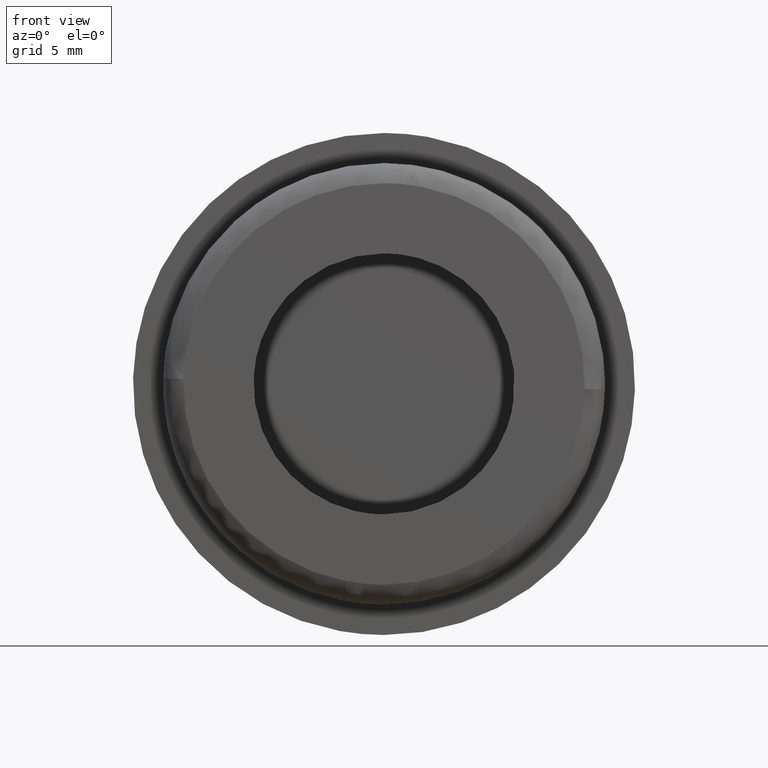
[diagram: clean part render]
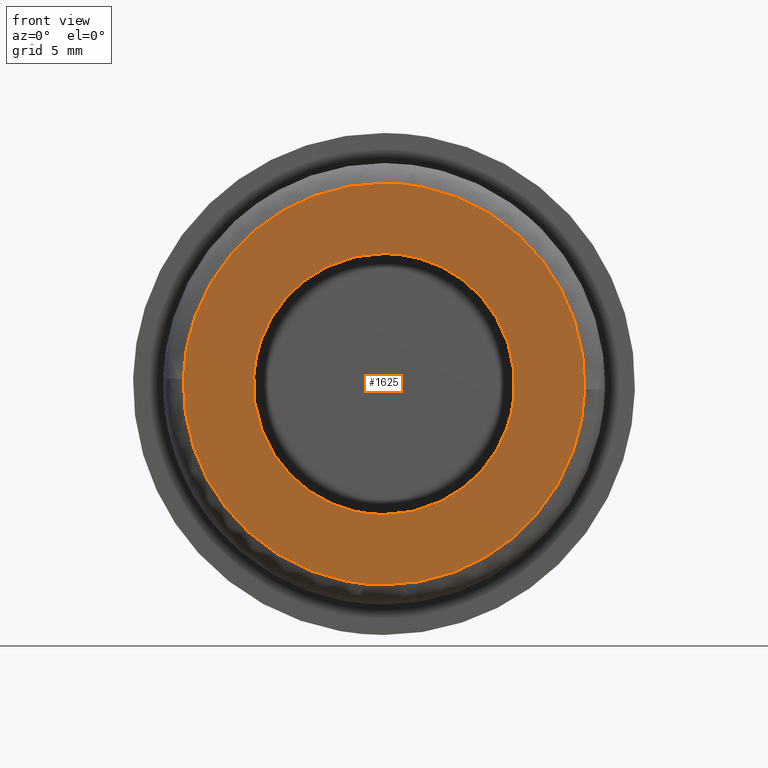
[diagram: same view with one face highlighted and labeled with its STEP entity id]
A machine part, front view. The second image highlights one B-rep face of the part: STEP entity #1625.
In plain terms, the highlighted face is a freeform B-spline surface patch.
Its self-contained STEP definition (entity closure, byte-faithful):
#703=CARTESIAN_POINT('',(6.454560631012747,-3.556444E-016,-0.767214436574179));
#704=VERTEX_POINT('',#703);
#710=CARTESIAN_POINT('',(0.0,-1.193992E-015,6.500000000000002));
#711=VERTEX_POINT('',#710);
#712=CARTESIAN_POINT('',(6.454560631012747,-3.556444E-016,-0.767214436574179));
#713=CARTESIAN_POINT('',(6.499998000000000,-1.193992E-015,-0.384951702039824));
#714=CARTESIAN_POINT('',(6.499998000000000,-1.193992E-015,0.000002000000002));
#715=CARTESIAN_POINT('',(6.499998000000001,-1.193992E-015,6.500000000000003));
#716=CARTESIAN_POINT('',(0.0,-1.193992E-015,6.500000000000002));
#724=(BOUNDED_CURVE()B_SPLINE_CURVE(2,(#712,#713,#714,#715,#716),.UNSPECIFIED.,.F.,.U.)B_SPLINE_CURVE_WITH_KNOTS((3,2,3),(0.229562626758146,0.250000000000000,0.500000000000000),.UNSPECIFIED.)CURVE()GEOMETRIC_REPRESENTATION_ITEM()RATIONAL_B_SPLINE_CURVE((0.956027054549681,0.976056127868406,1.0,0.707106781186548,1.0))REPRESENTATION_ITEM(''));
#725=EDGE_CURVE('',#704,#711,#724,.T.);
#727=CARTESIAN_POINT('',(-6.487874325377931,-1.207618E-015,0.396815228233624));
#728=VERTEX_POINT('',#727);
#729=CARTESIAN_POINT('',(0.0,-1.193992E-015,6.500000000000002));
#730=CARTESIAN_POINT('',(-6.114589589834370,-1.193992E-015,6.500000000000004));
#731=CARTESIAN_POINT('',(-6.487874325377931,-1.207618E-015,0.396815228233624));
#739=(BOUNDED_CURVE()B_SPLINE_CURVE(2,(#729,#730,#731),.UNSPECIFIED.,.F.,.U.)B_SPLINE_CURVE_WITH_KNOTS((3,3),(0.500000000000000,0.739333019598558),.UNSPECIFIED.)CURVE()GEOMETRIC_REPRESENTATION_ITEM()RATIONAL_B_SPLINE_CURVE((1.0,0.719603926085741,0.976072164599322))REPRESENTATION_ITEM(''));
#740=EDGE_CURVE('',#711,#728,#739,.T.);
#814=CARTESIAN_POINT('',(0.0,-1.193992E-015,-6.499995999999999));
#815=VERTEX_POINT('',#814);
#816=CARTESIAN_POINT('',(-6.487874325377931,-1.207618E-015,0.396815228233624));
#817=CARTESIAN_POINT('',(-6.499997999999999,-1.193992E-015,0.198593818988883));
#818=CARTESIAN_POINT('',(-6.499998000000000,-1.193992E-015,0.000002000000002));
#819=CARTESIAN_POINT('',(-6.499998000000001,-1.193992E-015,-6.499995999999997));
#820=CARTESIAN_POINT('',(0.0,-1.193992E-015,-6.499995999999999));
#828=(BOUNDED_CURVE()B_SPLINE_CURVE(2,(#816,#817,#818,#819,#820),.UNSPECIFIED.,.F.,.U.)B_SPLINE_CURVE_WITH_KNOTS((3,2,3),(0.739333019598558,0.750000000000000,1.0),.UNSPECIFIED.)CURVE()GEOMETRIC_REPRESENTATION_ITEM()RATIONAL_B_SPLINE_CURVE((0.976072164599322,0.987502855100806,1.0,0.707106781186548,1.0))REPRESENTATION_ITEM(''));
#829=EDGE_CURVE('',#728,#815,#828,.T.);
#831=CARTESIAN_POINT('',(0.0,-1.193992E-015,-6.499995999999999));
#832=CARTESIAN_POINT('',(5.773137913934289,-1.193992E-015,-6.499995999999999));
#833=CARTESIAN_POINT('',(6.454560631012747,-3.556444E-016,-0.767214436574179));
#841=(BOUNDED_CURVE()B_SPLINE_CURVE(2,(#831,#832,#833),.UNSPECIFIED.,.F.,.U.)B_SPLINE_CURVE_WITH_KNOTS((3,3),(0.0,0.229562626758146),.UNSPECIFIED.)CURVE()GEOMETRIC_REPRESENTATION_ITEM()RATIONAL_B_SPLINE_CURVE((1.0,0.731050653318142,0.956027054549681))REPRESENTATION_ITEM(''));
#842=EDGE_CURVE('',#815,#704,#841,.T.);
#1421=CARTESIAN_POINT('',(-9.996839894024996,1.229141E-014,0.251302904220832));
#1422=VERTEX_POINT('',#1421);
#1423=CARTESIAN_POINT('',(0.0,1.221245E-014,-9.999995999999998));
#1424=VERTEX_POINT('',#1423);
#1425=CARTESIAN_POINT('',(-9.996839894024996,1.229141E-014,0.251302904220832));
#1426=CARTESIAN_POINT('',(-9.999998000000000,1.221245E-014,0.125672296133287));
#1427=CARTESIAN_POINT('',(-9.999998000000000,1.221245E-014,0.000002000000002));
#1428=CARTESIAN_POINT('',(-9.999998000000000,1.221245E-014,-9.999995999999998));
#1429=CARTESIAN_POINT('',(0.0,1.221245E-014,-9.999995999999998));
#1437=(BOUNDED_CURVE()B_SPLINE_CURVE(2,(#1425,#1426,#1427,#1428,#1429),.UNSPECIFIED.,.F.,.U.)B_SPLINE_CURVE_WITH_KNOTS((3,2,3),(0.745579891768633,0.750000000000000,1.0),.UNSPECIFIED.)CURVE()GEOMETRIC_REPRESENTATION_ITEM()RATIONAL_B_SPLINE_CURVE((0.989826157678922,0.994821521090445,1.0,0.707106781186548,1.0))REPRESENTATION_ITEM(''));
#1438=EDGE_CURVE('',#1422,#1424,#1437,.T.);
#1456=CARTESIAN_POINT('',(9.996839894024994,1.227580E-014,-0.251298904220826));
#1457=VERTEX_POINT('',#1456);
#1471=CARTESIAN_POINT('',(0.0,1.221245E-014,-9.999995999999998));
#1472=CARTESIAN_POINT('',(9.751776811385291,1.221245E-014,-9.999995999999998));
#1473=CARTESIAN_POINT('',(9.996839894024994,1.227580E-014,-0.251298904220826));
#1481=(BOUNDED_CURVE()B_SPLINE_CURVE(2,(#1471,#1472,#1473),.UNSPECIFIED.,.F.,.U.)B_SPLINE_CURVE_WITH_KNOTS((3,3),(0.0,0.245579891768634),.UNSPECIFIED.)CURVE()GEOMETRIC_REPRESENTATION_ITEM()RATIONAL_B_SPLINE_CURVE((1.0,0.712285260096103,0.989826157678923))REPRESENTATION_ITEM(''));
#1482=EDGE_CURVE('',#1424,#1457,#1481,.T.);
#1510=CARTESIAN_POINT('',(0.0,1.221245E-014,10.0));
#1511=VERTEX_POINT('',#1510);
#1512=CARTESIAN_POINT('',(0.0,1.221245E-014,10.0));
#1513=CARTESIAN_POINT('',(-9.751776811385232,1.221245E-014,10.000000000000002));
#1514=CARTESIAN_POINT('',(-9.996839894024996,1.229141E-014,0.251302904220832));
#1522=(BOUNDED_CURVE()B_SPLINE_CURVE(2,(#1512,#1513,#1514),.UNSPECIFIED.,.F.,.U.)B_SPLINE_CURVE_WITH_KNOTS((3,3),(0.500000000000000,0.745579891768632),.UNSPECIFIED.)CURVE()GEOMETRIC_REPRESENTATION_ITEM()RATIONAL_B_SPLINE_CURVE((1.0,0.712285260096104,0.989826157678920))REPRESENTATION_ITEM(''));
#1523=EDGE_CURVE('',#1511,#1422,#1522,.T.);
#1525=CARTESIAN_POINT('',(9.996839894024994,1.227580E-014,-0.251298904220826));
#1526=CARTESIAN_POINT('',(9.999998000000000,1.221245E-014,-0.125668296133283));
#1527=CARTESIAN_POINT('',(9.999998000000000,1.221245E-014,0.000002000000002));
#1528=CARTESIAN_POINT('',(9.999998000000000,1.221245E-014,10.000000000000002));
#1529=CARTESIAN_POINT('',(0.0,1.221245E-014,10.0));
#1537=(BOUNDED_CURVE()B_SPLINE_CURVE(2,(#1525,#1526,#1527,#1528,#1529),.UNSPECIFIED.,.F.,.U.)B_SPLINE_CURVE_WITH_KNOTS((3,2,3),(0.245579891768634,0.250000000000000,0.500000000000000),.UNSPECIFIED.)CURVE()GEOMETRIC_REPRESENTATION_ITEM()RATIONAL_B_SPLINE_CURVE((0.989826157678923,0.994821521090445,1.0,0.707106781186548,1.0))REPRESENTATION_ITEM(''));
#1538=EDGE_CURVE('',#1457,#1511,#1537,.T.);
#1608=CARTESIAN_POINT('',(-10.995523713882269,5.509231E-015,-10.998995949181779));
#1609=CARTESIAN_POINT('',(-10.995523713882269,5.509231E-015,10.999000306809579));
#1610=CARTESIAN_POINT('',(10.995523177609989,5.509231E-015,-10.998995949181779));
#1611=CARTESIAN_POINT('',(10.995523177609989,5.509231E-015,10.999000306809579));
#1612=B_SPLINE_SURFACE_WITH_KNOTS('',1,1,((#1608,#1610),(#1609,#1611)),.UNSPECIFIED.,.F.,.F.,.U.,(2,2),(2,2),(0.0,21.997996255991360),(0.0,21.991046891492260),.UNSPECIFIED.);
#1613=ORIENTED_EDGE('',*,*,#1482,.T.);
#1614=ORIENTED_EDGE('',*,*,#1538,.T.);
#1615=ORIENTED_EDGE('',*,*,#1523,.T.);
#1616=ORIENTED_EDGE('',*,*,#1438,.T.);
#1617=EDGE_LOOP('',(#1613,#1614,#1615,#1616));
#1618=FACE_OUTER_BOUND('',#1617,.T.);
#1619=ORIENTED_EDGE('',*,*,#740,.F.);
#1620=ORIENTED_EDGE('',*,*,#725,.F.);
#1621=ORIENTED_EDGE('',*,*,#842,.F.);
#1622=ORIENTED_EDGE('',*,*,#829,.F.);
#1623=EDGE_LOOP('',(#1619,#1620,#1621,#1622));
#1624=FACE_BOUND('',#1623,.T.);
#1625=ADVANCED_FACE('',(#1618,#1624),#1612,.F.);